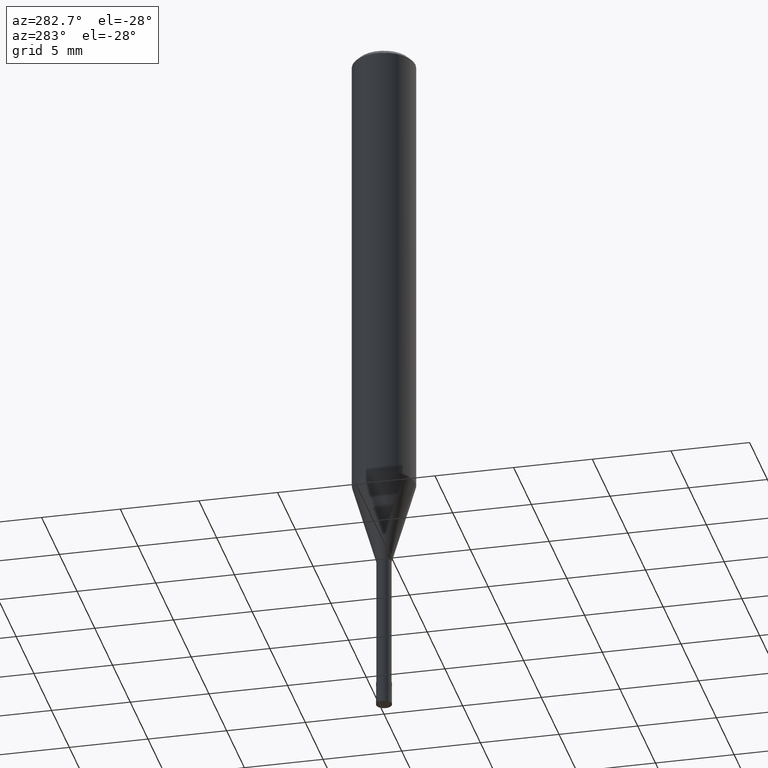
[diagram: clean part render]
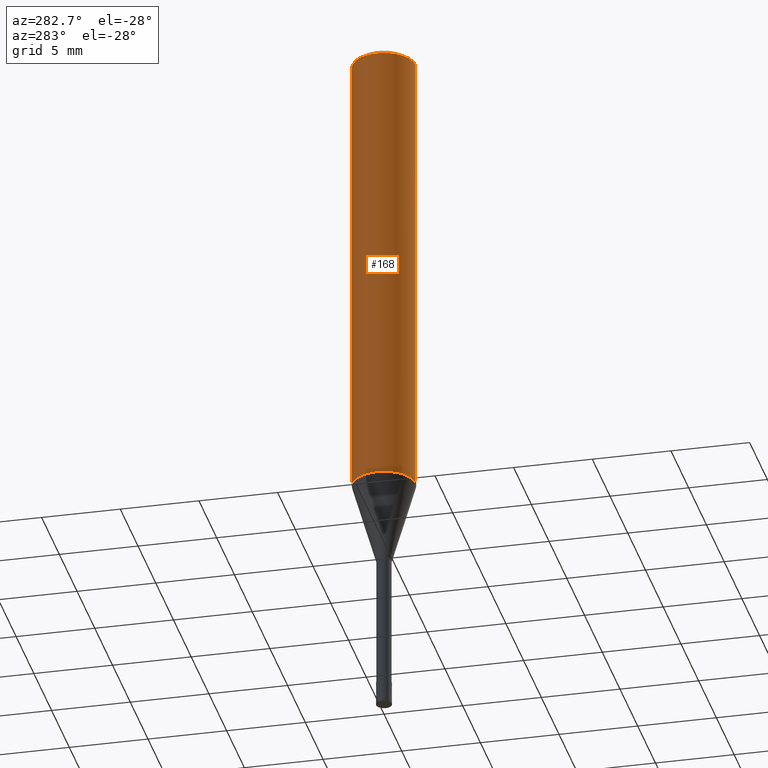
[diagram: same view with one face highlighted and labeled with its STEP entity id]
A machine part, auxiliary view. The second image highlights one B-rep face of the part: STEP entity #168.
In plain terms, the highlighted cylindrical surface (edge-blend (fillet) strip) has radius 2 mm, axis along (-0, -0, 1).
Its self-contained STEP definition (entity closure, byte-faithful):
#106=VERTEX_POINT('',#243);
#116=VERTEX_POINT('',#256);
#122=EDGE_CURVE('',#142,#194,#262,.T.);
#142=VERTEX_POINT('',#286);
#148=EDGE_CURVE('',#106,#194,#293,.T.);
#168=ADVANCED_FACE('',(#314),#315,.T.);
#178=EDGE_CURVE('',#142,#116,#326,.T.);
#194=VERTEX_POINT('',#344);
#208=EDGE_CURVE('',#116,#106,#361,.T.);
#243=CARTESIAN_POINT('',(0.0,2.0,-0.300000000000001));
#256=CARTESIAN_POINT('',(2.44921270764475E-016,-2.0,-0.300000000000001));
#262=CIRCLE('',#413,2.0);
#286=CARTESIAN_POINT('',(2.44921270764475E-016,-2.0,-29.682));
#293=LINE('',#450,#451);
#314=FACE_OUTER_BOUND('',#478,.T.);
#315=CYLINDRICAL_SURFACE('',#479,2.0);
#326=LINE('',#496,#497);
#344=CARTESIAN_POINT('',(0.0,2.0,-29.682));
#361=CIRCLE('',#540,2.0);
#413=AXIS2_PLACEMENT_3D('',#568,#569,#570);
#450=CARTESIAN_POINT('',(-2.44921270764475E-016,2.0,-14.991));
#451=VECTOR('',#618,1.0);
#478=EDGE_LOOP('',(#641,#642,#643,#644));
#479=AXIS2_PLACEMENT_3D('',#645,#646,#647);
#496=CARTESIAN_POINT('',(2.44921270764475E-016,-2.0,-14.991));
#497=VECTOR('',#661,1.0);
#540=AXIS2_PLACEMENT_3D('',#711,#712,#713);
#568=CARTESIAN_POINT('',(0.0,0.0,-29.682));
#569=DIRECTION('',(0.0,0.0,-1.0));
#570=DIRECTION('',(0.0,1.0,0.0));
#618=DIRECTION('',(0.0,0.0,-1.0));
#641=ORIENTED_EDGE('',*,*,#148,.T.);
#642=ORIENTED_EDGE('',*,*,#122,.F.);
#643=ORIENTED_EDGE('',*,*,#178,.T.);
#644=ORIENTED_EDGE('',*,*,#208,.T.);
#645=CARTESIAN_POINT('',(0.0,0.0,-14.991));
#646=DIRECTION('',(-0.0,-0.0,1.0));
#647=DIRECTION('',(0.0,1.0,0.0));
#661=DIRECTION('',(-0.0,-0.0,1.0));
#711=CARTESIAN_POINT('',(0.0,0.0,-0.300000000000001));
#712=DIRECTION('',(0.0,0.0,-1.0));
#713=DIRECTION('',(0.0,1.0,0.0));